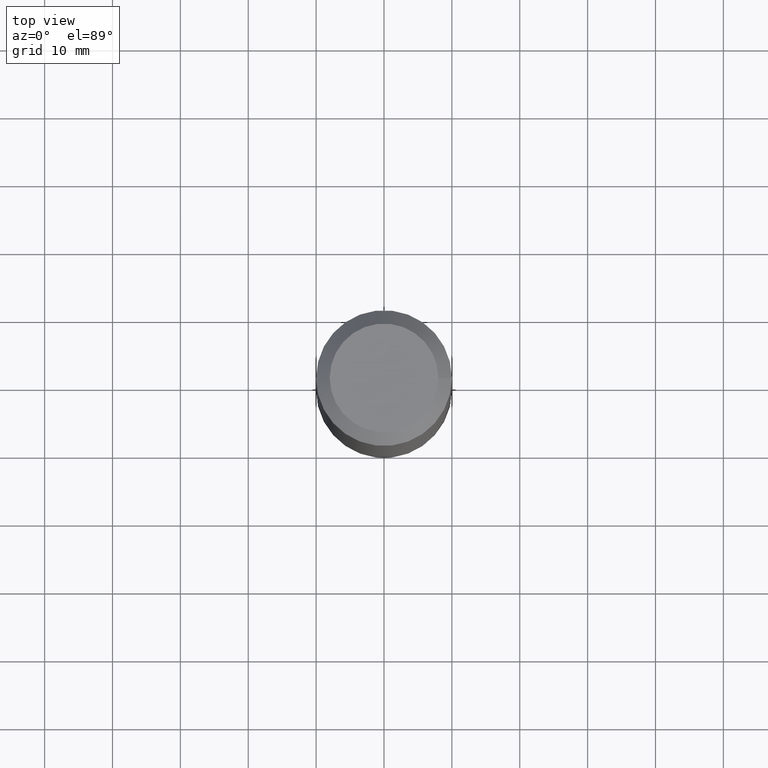
[diagram: clean part render]
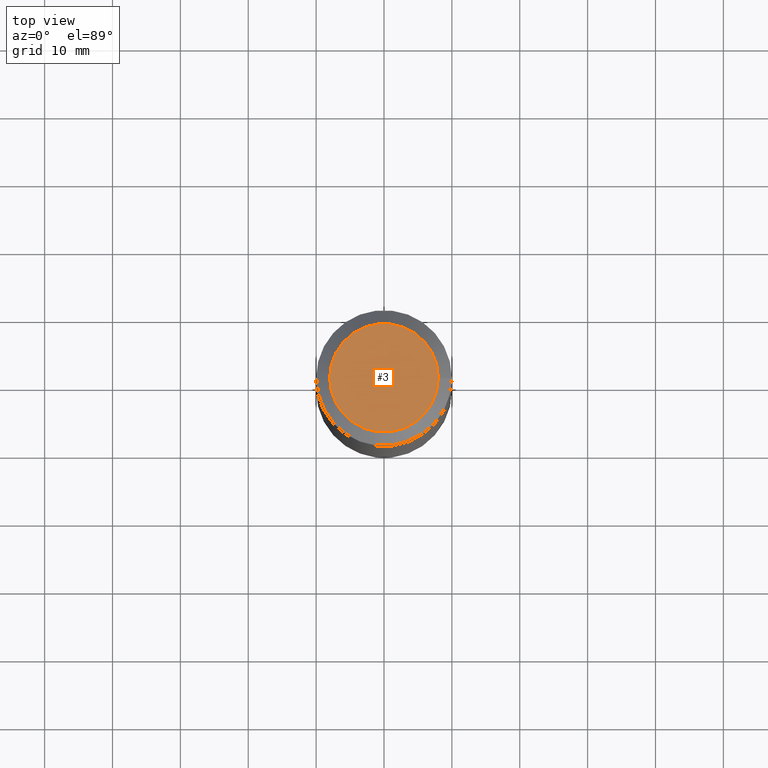
[diagram: same view with one face highlighted and labeled with its STEP entity id]
A machine part, top view. The second image highlights one B-rep face of the part: STEP entity #3.
In plain terms, the highlighted planar face has unit normal (0, 0, 1).
Its self-contained STEP definition (entity closure, byte-faithful):
#3 = ADVANCED_FACE ( 'NONE', ( #202 ), #217, .T. ) ;
#4 = VERTEX_POINT ( 'NONE', #63 ) ;
#22 = EDGE_CURVE ( 'NONE', #4, #4, #214, .T. ) ;
#51 = AXIS2_PLACEMENT_3D ( 'NONE', #132, #107, #116 ) ;
#53 = DIRECTION ( 'NONE',  ( 1.000000000000000000, 0.0000000000000000000, -6.982962677686266711E-15 ) ) ;
#63 = CARTESIAN_POINT ( 'NONE',  ( 7.999999999999992895, 0.0000000000000000000, -5.586370142149008320E-14 ) ) ;
#107 = DIRECTION ( 'NONE',  ( 6.982962677686266711E-15, 0.0000000000000000000, 1.000000000000000000 ) ) ;
#116 = DIRECTION ( 'NONE',  ( 1.000000000000000000, 0.0000000000000000000, -6.982962677686266711E-15 ) ) ;
#122 = AXIS2_PLACEMENT_3D ( 'NONE', #135, #192, #53 ) ;
#127 = EDGE_LOOP ( 'NONE', ( #147 ) ) ;
#132 = CARTESIAN_POINT ( 'NONE',  ( 0.0000000000000000000, 0.0000000000000000000, 0.0000000000000000000 ) ) ;
#135 = CARTESIAN_POINT ( 'NONE',  ( -3.326488793394202502E-30, 0.0000000000000000000, -4.763721284124635757E-16 ) ) ;
#147 = ORIENTED_EDGE ( 'NONE', *, *, #22, .T. ) ;
#192 = DIRECTION ( 'NONE',  ( 6.982962677686266711E-15, 0.0000000000000000000, 1.000000000000000000 ) ) ;
#202 = FACE_OUTER_BOUND ( 'NONE', #127, .T. ) ;
#214 = CIRCLE ( 'NONE', #51, 7.999999999999992895 ) ;
#217 = PLANE ( 'NONE',  #122 ) ;